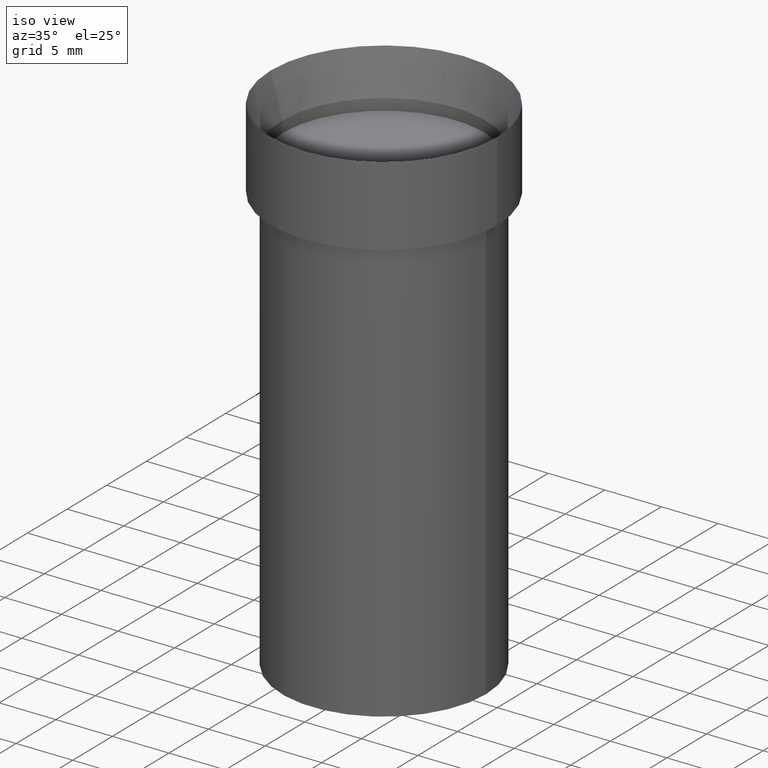
[diagram: clean part render]
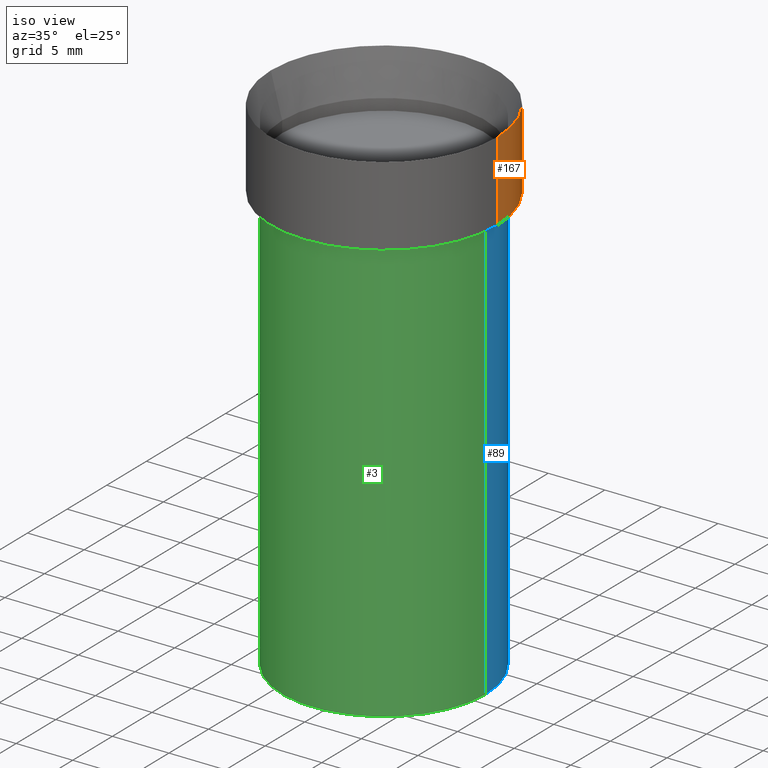
[diagram: same view with three faces highlighted in distinct colors, each labeled with its STEP entity id]
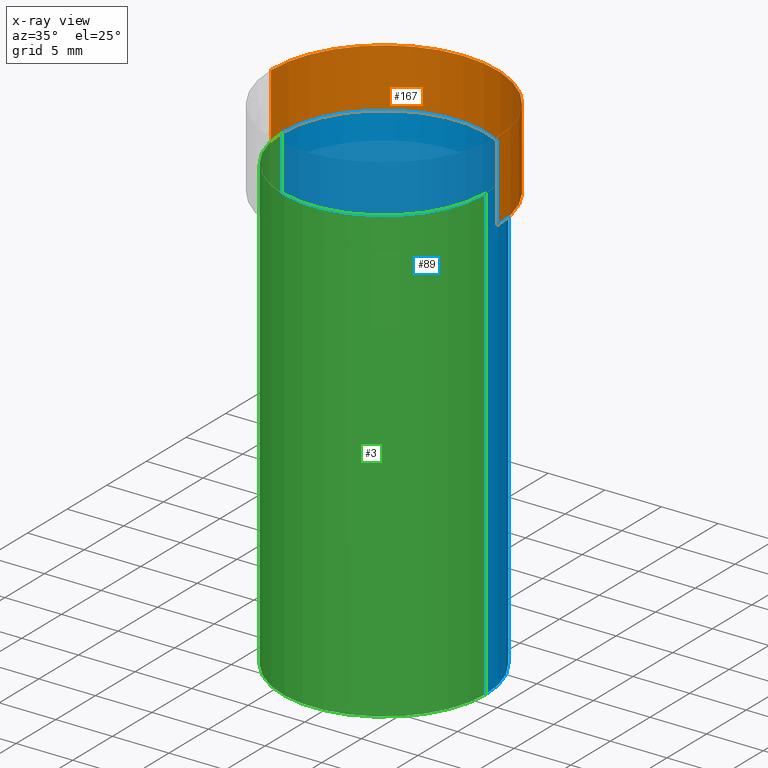
[diagram: x-ray of the same camera — body ghosted, the three highlighted faces saturated]
A machine part, iso view with three faces highlighted in distinct colors.
The next image is the same camera in x-ray (body ghosted, the three faces saturated) — at least one of them is partly hidden behind the body in this view.
Their STEP definitions:

[orange] entity #167 — the highlighted cylindrical surface (partial cylindrical patch) has radius 10 mm, axis along (0, -0, -1).
#5 = DIRECTION ( 'NONE',  ( 2.445468806185136597E-29, -3.491481338843145583E-15, -1.000000000000000000 ) ) ;
#10 = CARTESIAN_POINT ( 'NONE',  ( -0.3936999999999999389, 3.711672783926467705E-15, 0.2618561992778351555 ) ) ;
#15 = AXIS2_PLACEMENT_3D ( 'NONE', #82, #5, #352 ) ;
#18 = CIRCLE ( 'NONE', #15, 0.3937000000000000499 ) ;
#21 = DIRECTION ( 'NONE',  ( -1.000000000000000000, 6.982962677686266711E-15, -4.876176775795935793E-29 ) ) ;
#23 = AXIS2_PLACEMENT_3D ( 'NONE', #245, #424, #172 ) ;
#29 = LINE ( 'NONE', #173, #140 ) ;
#46 = ORIENTED_EDGE ( 'NONE', *, *, #235, .F. ) ;
#61 = DIRECTION ( 'NONE',  ( 2.445468806185136597E-29, -3.491481338843145583E-15, -1.000000000000000000 ) ) ;
#82 = CARTESIAN_POINT ( 'NONE',  ( 3.668203209277705088E-31, -5.237222008264718399E-17, -0.01499999999999999944 ) ) ;
#84 = EDGE_CURVE ( 'NONE', #437, #295, #29, .T. ) ;
#138 = CARTESIAN_POINT ( 'NONE',  ( -0.3936999999999999389, 2.749192406205082822E-15, -1.919750796630859611E-29 ) ) ;
#140 = VECTOR ( 'NONE', #465, 39.37007874015748143 ) ;
#156 = CIRCLE ( 'NONE', #23, 0.3936999999999999389 ) ;
#165 = EDGE_CURVE ( 'NONE', #427, #298, #168, .T. ) ;
#167 = ADVANCED_FACE ( 'NONE', ( #420 ), #271, .T. ) ;
#168 = LINE ( 'NONE', #138, #453 ) ;
#172 = DIRECTION ( 'NONE',  ( -1.000000000000000000, 6.982962677686266711E-15, 0.000000000000000000 ) ) ;
#173 = CARTESIAN_POINT ( 'NONE',  ( 0.3936999999999999389, -2.700978061722651647E-15, 1.902916848228363047E-29 ) ) ;
#175 = CARTESIAN_POINT ( 'NONE',  ( 0.3936999999999999389, -1.834926372966129509E-15, 0.2618561992778351555 ) ) ;
#182 = CARTESIAN_POINT ( 'NONE',  ( -0.3937000000000000499, 2.696820186122435743E-15, -0.01499999999999999944 ) ) ;
#193 = AXIS2_PLACEMENT_3D ( 'NONE', #418, #61, #21 ) ;
#235 = EDGE_CURVE ( 'NONE', #298, #295, #18, .T. ) ;
#245 = CARTESIAN_POINT ( 'NONE',  ( -6.403611670401447787E-30, 9.142660332389533129E-16, 0.2618561992778351555 ) ) ;
#252 = CARTESIAN_POINT ( 'NONE',  ( 0.3937000000000000499, -2.753350281805299909E-15, -0.01499999999999999944 ) ) ;
#267 = DIRECTION ( 'NONE',  ( 2.445468806185136877E-29, -3.491481338843145188E-15, -1.000000000000000000 ) ) ;
#271 = CYLINDRICAL_SURFACE ( 'NONE', #193, 0.3936999999999999389 ) ;
#295 = VERTEX_POINT ( 'NONE', #252 ) ;
#297 = EDGE_CURVE ( 'NONE', #427, #437, #156, .T. ) ;
#298 = VERTEX_POINT ( 'NONE', #182 ) ;
#311 = ORIENTED_EDGE ( 'NONE', *, *, #297, .T. ) ;
#335 = EDGE_LOOP ( 'NONE', ( #311, #390, #46, #405 ) ) ;
#352 = DIRECTION ( 'NONE',  ( -1.000000000000000000, 6.982962677686265922E-15, 0.000000000000000000 ) ) ;
#390 = ORIENTED_EDGE ( 'NONE', *, *, #84, .T. ) ;
#405 = ORIENTED_EDGE ( 'NONE', *, *, #165, .F. ) ;
#418 = CARTESIAN_POINT ( 'NONE',  ( 0.000000000000000000, 0.000000000000000000, 0.000000000000000000 ) ) ;
#420 = FACE_OUTER_BOUND ( 'NONE', #335, .T. ) ;
#424 = DIRECTION ( 'NONE',  ( 2.445468806185136597E-29, -3.491481338843145583E-15, -1.000000000000000000 ) ) ;
#427 = VERTEX_POINT ( 'NONE', #10 ) ;
#437 = VERTEX_POINT ( 'NONE', #175 ) ;
#453 = VECTOR ( 'NONE', #267, 39.37007874015748143 ) ;
#465 = DIRECTION ( 'NONE',  ( 2.445468806185136877E-29, -3.491481338843145188E-15, -1.000000000000000000 ) ) ;

[blue] entity #89 — the highlighted cylindrical surface (partial cylindrical patch) has radius 9.0005 mm, axis along (0, -0, -1).
#6 = DIRECTION ( 'NONE',  ( 2.445468806185136877E-29, -3.491481338843145188E-15, -1.000000000000000000 ) ) ;
#16 = EDGE_LOOP ( 'NONE', ( #79, #155, #466, #400 ) ) ;
#25 = CYLINDRICAL_SURFACE ( 'NONE', #180, 0.3543499999999999983 ) ;
#50 = EDGE_CURVE ( 'NONE', #209, #52, #127, .T. ) ;
#52 = VERTEX_POINT ( 'NONE', #196 ) ;
#72 = CARTESIAN_POINT ( 'NONE',  ( 3.668203209277704895E-29, -5.237222008264718177E-15, -1.500000000000000222 ) ) ;
#79 = ORIENTED_EDGE ( 'NONE', *, *, #50, .T. ) ;
#89 = ADVANCED_FACE ( 'NONE', ( #190 ), #25, .T. ) ;
#93 = CARTESIAN_POINT ( 'NONE',  ( 0.3543499999999999983, -4.919047067569968280E-15, -1.500000000000000222 ) ) ;
#127 = CIRCLE ( 'NONE', #286, 0.3543499999999999983 ) ;
#155 = ORIENTED_EDGE ( 'NONE', *, *, #410, .T. ) ;
#161 = CIRCLE ( 'NONE', #414, 0.3543499999999999983 ) ;
#176 = CARTESIAN_POINT ( 'NONE',  ( -0.3543499999999999983, -2.762809183426589877E-15, -1.500000000000000222 ) ) ;
#180 = AXIS2_PLACEMENT_3D ( 'NONE', #192, #379, #237 ) ;
#190 = FACE_OUTER_BOUND ( 'NONE', #16, .T. ) ;
#192 = CARTESIAN_POINT ( 'NONE',  ( 0.000000000000000000, 0.000000000000000000, 0.000000000000000000 ) ) ;
#196 = CARTESIAN_POINT ( 'NONE',  ( 0.3543499999999999983, -4.919047067569968280E-15, 0.07479999999999997762 ) ) ;
#201 = DIRECTION ( 'NONE',  ( 2.445468806185136597E-29, -3.491481338843145583E-15, -1.000000000000000000 ) ) ;
#209 = VERTEX_POINT ( 'NONE', #279 ) ;
#223 = EDGE_CURVE ( 'NONE', #209, #268, #384, .T. ) ;
#237 = DIRECTION ( 'NONE',  ( -1.000000000000000000, 6.982962677686266711E-15, -4.876176775795935793E-29 ) ) ;
#244 = CARTESIAN_POINT ( 'NONE',  ( -0.3543499999999999983, 2.474412824838128694E-15, -1.727873240503289749E-29 ) ) ;
#268 = VERTEX_POINT ( 'NONE', #176 ) ;
#270 = VECTOR ( 'NONE', #399, 39.37007874015748143 ) ;
#279 = CARTESIAN_POINT ( 'NONE',  ( -0.3543499999999999983, 2.735575628983595883E-15, 0.07479999999999997762 ) ) ;
#280 = DIRECTION ( 'NONE',  ( 2.445468806185136597E-29, -3.491481338843145583E-15, -1.000000000000000000 ) ) ;
#286 = AXIS2_PLACEMENT_3D ( 'NONE', #309, #280, #347 ) ;
#289 = LINE ( 'NONE', #440, #270 ) ;
#309 = CARTESIAN_POINT ( 'NONE',  ( -1.829210667026481802E-30, 2.611628041454672384E-16, 0.07479999999999997762 ) ) ;
#324 = EDGE_CURVE ( 'NONE', #268, #397, #161, .T. ) ;
#347 = DIRECTION ( 'NONE',  ( -1.000000000000000000, 6.982962677686266711E-15, 0.000000000000000000 ) ) ;
#368 = VECTOR ( 'NONE', #6, 39.37007874015748143 ) ;
#379 = DIRECTION ( 'NONE',  ( 2.445468806185136597E-29, -3.491481338843145583E-15, -1.000000000000000000 ) ) ;
#384 = LINE ( 'NONE', #244, #368 ) ;
#388 = DIRECTION ( 'NONE',  ( -1.000000000000000000, 6.982962677686266711E-15, 0.000000000000000000 ) ) ;
#397 = VERTEX_POINT ( 'NONE', #93 ) ;
#399 = DIRECTION ( 'NONE',  ( 2.445468806185136877E-29, -3.491481338843145188E-15, -1.000000000000000000 ) ) ;
#400 = ORIENTED_EDGE ( 'NONE', *, *, #223, .F. ) ;
#410 = EDGE_CURVE ( 'NONE', #52, #397, #289, .T. ) ;
#414 = AXIS2_PLACEMENT_3D ( 'NONE', #72, #201, #388 ) ;
#440 = CARTESIAN_POINT ( 'NONE',  ( 0.3543499999999999983, -2.431017465510342392E-15, 1.712721831774753992E-29 ) ) ;
#466 = ORIENTED_EDGE ( 'NONE', *, *, #324, .F. ) ;

[green] entity #3 — the highlighted cylindrical surface (partial cylindrical patch) has radius 9.0005 mm, axis along (0, -0, -1).
#1 = DIRECTION ( 'NONE',  ( 2.445468806185136597E-29, -3.491481338843145583E-15, -1.000000000000000000 ) ) ;
#3 = ADVANCED_FACE ( 'NONE', ( #232 ), #231, .T. ) ;
#6 = DIRECTION ( 'NONE',  ( 2.445468806185136877E-29, -3.491481338843145188E-15, -1.000000000000000000 ) ) ;
#12 = EDGE_CURVE ( 'NONE', #397, #268, #452, .T. ) ;
#14 = AXIS2_PLACEMENT_3D ( 'NONE', #458, #419, #101 ) ;
#39 = DIRECTION ( 'NONE',  ( -1.000000000000000000, 6.982962677686266711E-15, 0.000000000000000000 ) ) ;
#45 = ORIENTED_EDGE ( 'NONE', *, *, #223, .T. ) ;
#52 = VERTEX_POINT ( 'NONE', #196 ) ;
#62 = CARTESIAN_POINT ( 'NONE',  ( 0.000000000000000000, 0.000000000000000000, 0.000000000000000000 ) ) ;
#75 = AXIS2_PLACEMENT_3D ( 'NONE', #62, #376, #263 ) ;
#93 = CARTESIAN_POINT ( 'NONE',  ( 0.3543499999999999983, -4.919047067569968280E-15, -1.500000000000000222 ) ) ;
#101 = DIRECTION ( 'NONE',  ( -1.000000000000000000, 6.982962677686266711E-15, 0.000000000000000000 ) ) ;
#102 = ORIENTED_EDGE ( 'NONE', *, *, #12, .F. ) ;
#158 = ORIENTED_EDGE ( 'NONE', *, *, #410, .F. ) ;
#176 = CARTESIAN_POINT ( 'NONE',  ( -0.3543499999999999983, -2.762809183426589877E-15, -1.500000000000000222 ) ) ;
#196 = CARTESIAN_POINT ( 'NONE',  ( 0.3543499999999999983, -4.919047067569968280E-15, 0.07479999999999997762 ) ) ;
#208 = EDGE_CURVE ( 'NONE', #52, #209, #261, .T. ) ;
#209 = VERTEX_POINT ( 'NONE', #279 ) ;
#210 = ORIENTED_EDGE ( 'NONE', *, *, #208, .T. ) ;
#223 = EDGE_CURVE ( 'NONE', #209, #268, #384, .T. ) ;
#231 = CYLINDRICAL_SURFACE ( 'NONE', #75, 0.3543499999999999983 ) ;
#232 = FACE_OUTER_BOUND ( 'NONE', #348, .T. ) ;
#244 = CARTESIAN_POINT ( 'NONE',  ( -0.3543499999999999983, 2.474412824838128694E-15, -1.727873240503289749E-29 ) ) ;
#261 = CIRCLE ( 'NONE', #301, 0.3543499999999999983 ) ;
#263 = DIRECTION ( 'NONE',  ( -1.000000000000000000, 6.982962677686266711E-15, -4.876176775795935793E-29 ) ) ;
#268 = VERTEX_POINT ( 'NONE', #176 ) ;
#270 = VECTOR ( 'NONE', #399, 39.37007874015748143 ) ;
#279 = CARTESIAN_POINT ( 'NONE',  ( -0.3543499999999999983, 2.735575628983595883E-15, 0.07479999999999997762 ) ) ;
#289 = LINE ( 'NONE', #440, #270 ) ;
#301 = AXIS2_PLACEMENT_3D ( 'NONE', #356, #1, #39 ) ;
#348 = EDGE_LOOP ( 'NONE', ( #158, #210, #45, #102 ) ) ;
#356 = CARTESIAN_POINT ( 'NONE',  ( -1.829210667026481802E-30, 2.611628041454672384E-16, 0.07479999999999997762 ) ) ;
#368 = VECTOR ( 'NONE', #6, 39.37007874015748143 ) ;
#376 = DIRECTION ( 'NONE',  ( 2.445468806185136597E-29, -3.491481338843145583E-15, -1.000000000000000000 ) ) ;
#384 = LINE ( 'NONE', #244, #368 ) ;
#397 = VERTEX_POINT ( 'NONE', #93 ) ;
#399 = DIRECTION ( 'NONE',  ( 2.445468806185136877E-29, -3.491481338843145188E-15, -1.000000000000000000 ) ) ;
#410 = EDGE_CURVE ( 'NONE', #52, #397, #289, .T. ) ;
#419 = DIRECTION ( 'NONE',  ( 2.445468806185136597E-29, -3.491481338843145583E-15, -1.000000000000000000 ) ) ;
#440 = CARTESIAN_POINT ( 'NONE',  ( 0.3543499999999999983, -2.431017465510342392E-15, 1.712721831774753992E-29 ) ) ;
#452 = CIRCLE ( 'NONE', #14, 0.3543499999999999983 ) ;
#458 = CARTESIAN_POINT ( 'NONE',  ( 3.668203209277704895E-29, -5.237222008264718177E-15, -1.500000000000000222 ) ) ;